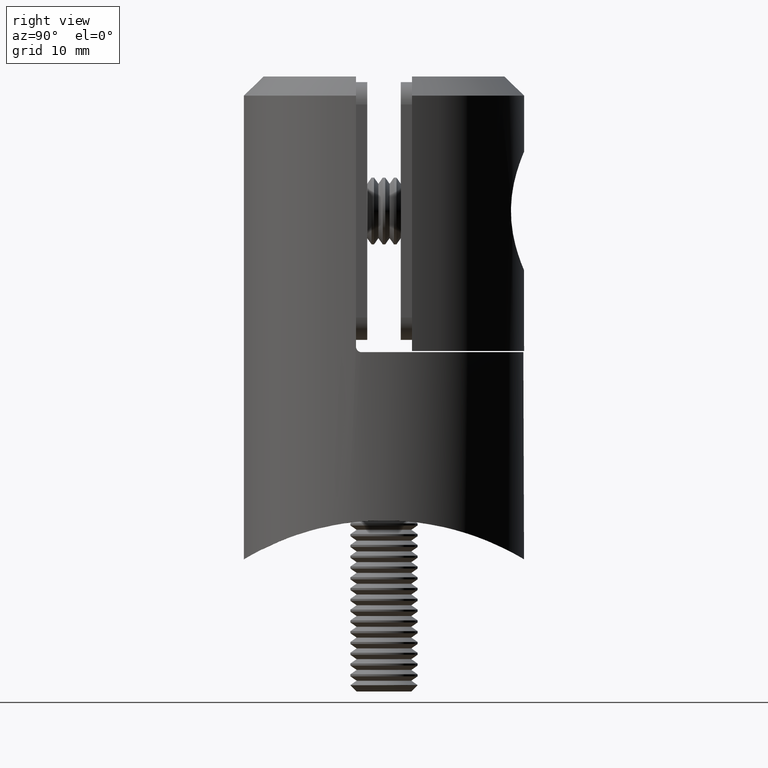
[diagram: clean part render]
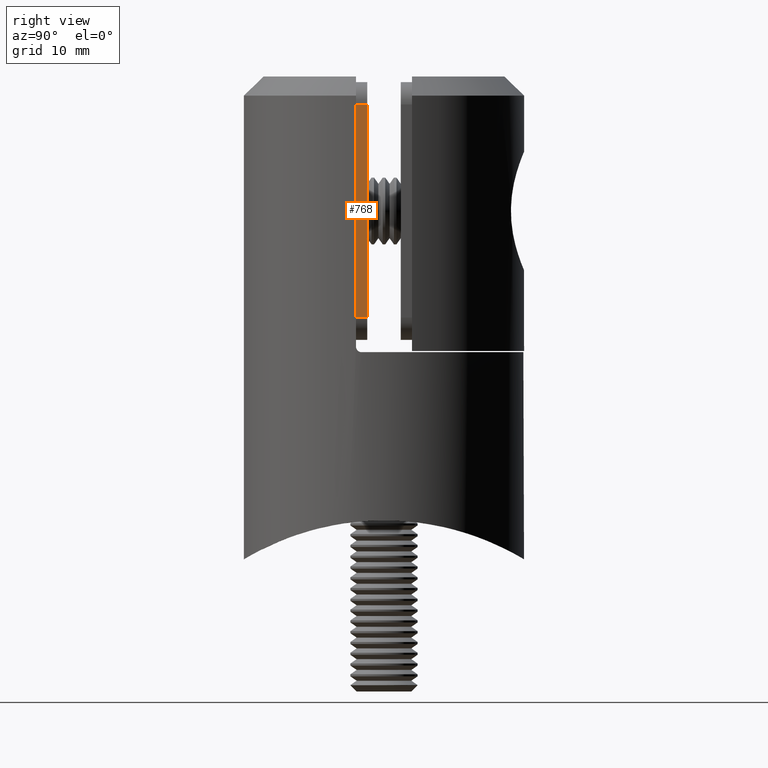
[diagram: same view with one face highlighted and labeled with its STEP entity id]
A machine part, right view. The second image highlights one B-rep face of the part: STEP entity #768.
In plain terms, the highlighted planar face has unit normal (-1, 0, -0).
Its self-contained STEP definition (entity closure, byte-faithful):
#768 = ADVANCED_FACE ( 'NONE', ( #7323 ), #15803, .F. ) ;
#1086 = DIRECTION ( 'NONE',  ( 1.000000000000000000, 0.000000000000000000, -1.508455196501572662E-16 ) ) ;
#3003 = DIRECTION ( 'NONE',  ( -1.508455196501572662E-16, 0.000000000000000000, -1.000000000000000000 ) ) ;
#3382 = AXIS2_PLACEMENT_3D ( 'NONE', #10367, #1086, #3003 ) ;
#3710 = LINE ( 'NONE', #6271, #20900 ) ;
#5700 = CARTESIAN_POINT ( 'NONE',  ( -11.50000000000000000, 0.000000000000000000, 9.499999999999996447 ) ) ;
#5763 = LINE ( 'NONE', #9120, #7515 ) ;
#6271 = CARTESIAN_POINT ( 'NONE',  ( -11.50000000000000000, 1.000000000000000000, 9.499999999999996447 ) ) ;
#6843 = CARTESIAN_POINT ( 'NONE',  ( -11.50000000000000355, 1.000000000000000000, -9.499999999999987566 ) ) ;
#7323 = FACE_OUTER_BOUND ( 'NONE', #9640, .T. ) ;
#7515 = VECTOR ( 'NONE', #21986, 1000.000000000000000 ) ;
#8393 = EDGE_CURVE ( 'NONE', #23461, #22435, #12269, .T. ) ;
#8832 = EDGE_CURVE ( 'NONE', #22435, #10941, #3710, .T. ) ;
#9120 = CARTESIAN_POINT ( 'NONE',  ( -11.50000000000000000, 1.000000000000000000, 11.49999999999999645 ) ) ;
#9640 = EDGE_LOOP ( 'NONE', ( #12380, #22630, #20023, #10110 ) ) ;
#9674 = DIRECTION ( 'NONE',  ( 1.508455196501572415E-16, -0.000000000000000000, 1.000000000000000000 ) ) ;
#10110 = ORIENTED_EDGE ( 'NONE', *, *, #8832, .T. ) ;
#10367 = CARTESIAN_POINT ( 'NONE',  ( -11.50000000000000000, 1.000000000000000000, 11.49999999999999645 ) ) ;
#10941 = VERTEX_POINT ( 'NONE', #16647 ) ;
#12269 = LINE ( 'NONE', #14883, #15407 ) ;
#12380 = ORIENTED_EDGE ( 'NONE', *, *, #18938, .F. ) ;
#14244 = DIRECTION ( 'NONE',  ( 0.000000000000000000, -1.000000000000000000, 0.000000000000000000 ) ) ;
#14883 = CARTESIAN_POINT ( 'NONE',  ( -11.50000000000000000, 0.000000000000000000, 11.49999999999999645 ) ) ;
#15407 = VECTOR ( 'NONE', #9674, 1000.000000000000000 ) ;
#15803 = PLANE ( 'NONE',  #3382 ) ;
#16647 = CARTESIAN_POINT ( 'NONE',  ( -11.50000000000000000, 1.000000000000000000, 9.499999999999996447 ) ) ;
#17479 = CARTESIAN_POINT ( 'NONE',  ( -11.50000000000000355, 0.000000000000000000, -9.499999999999987566 ) ) ;
#17519 = EDGE_CURVE ( 'NONE', #18335, #23461, #23271, .T. ) ;
#18335 = VERTEX_POINT ( 'NONE', #6843 ) ;
#18938 = EDGE_CURVE ( 'NONE', #18335, #10941, #5763, .T. ) ;
#19090 = DIRECTION ( 'NONE',  ( -0.000000000000000000, 1.000000000000000000, -0.000000000000000000 ) ) ;
#20023 = ORIENTED_EDGE ( 'NONE', *, *, #8393, .T. ) ;
#20900 = VECTOR ( 'NONE', #19090, 1000.000000000000000 ) ;
#21276 = CARTESIAN_POINT ( 'NONE',  ( -11.50000000000000355, 1.000000000000000000, -9.499999999999987566 ) ) ;
#21986 = DIRECTION ( 'NONE',  ( 1.508455196501572415E-16, -0.000000000000000000, 1.000000000000000000 ) ) ;
#22132 = VECTOR ( 'NONE', #14244, 1000.000000000000000 ) ;
#22435 = VERTEX_POINT ( 'NONE', #5700 ) ;
#22630 = ORIENTED_EDGE ( 'NONE', *, *, #17519, .T. ) ;
#23271 = LINE ( 'NONE', #21276, #22132 ) ;
#23461 = VERTEX_POINT ( 'NONE', #17479 ) ;